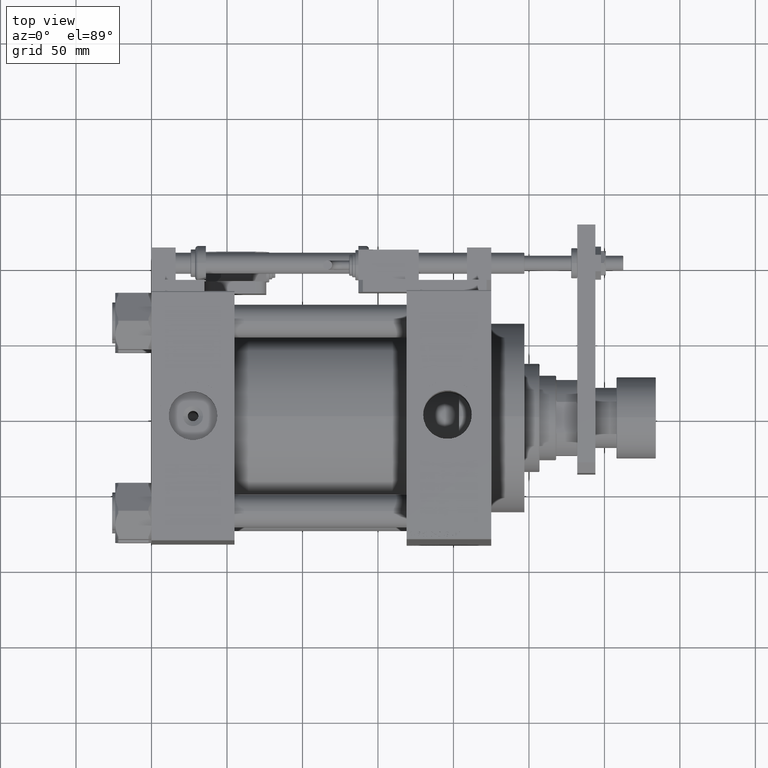
[diagram: clean part render]
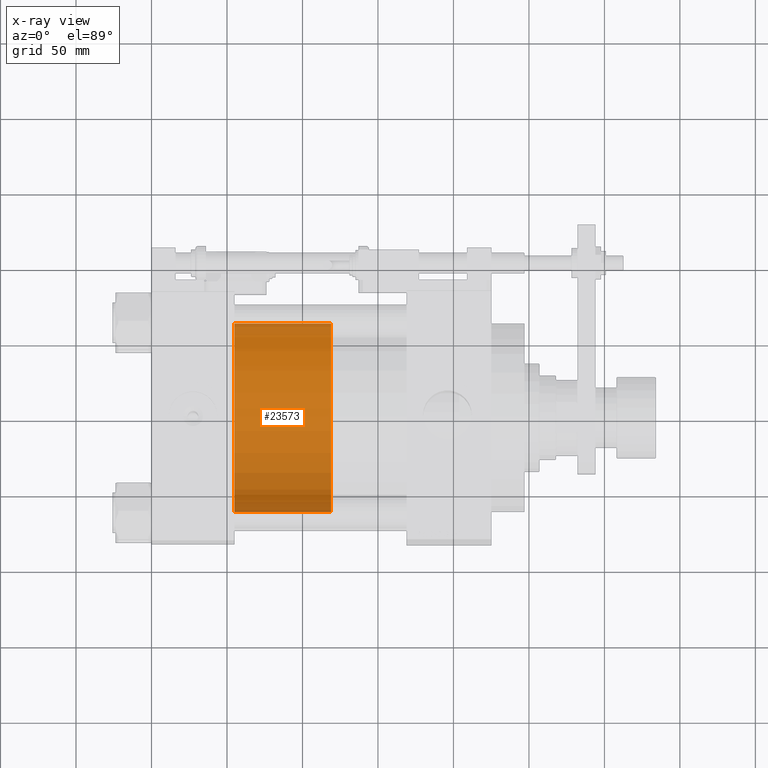
[diagram: x-ray — body ghosted, one internal face saturated and labeled with its STEP entity id]
A machine part, top view, then the same camera in x-ray: the body is ghosted and one INTERNAL B-rep face — a face not visible from any outside direction — is saturated and labeled: STEP entity #23573.
In plain terms, the highlighted cylindrical surface (partial cylindrical patch) has radius 62.5 mm, axis along (-1, 0, 0).
Its self-contained STEP definition (entity closure, byte-faithful):
#1476 = CARTESIAN_POINT ( 'NONE',  ( 62.50000000000000000, 7.654042494670957804E-15, 64.00000000000000000 ) ) ;
#1605 = CARTESIAN_POINT ( 'NONE',  ( 62.50000000000000000, 7.654042494670957804E-15, 64.00000000000000000 ) ) ;
#1663 = DIRECTION ( 'NONE',  ( 1.000000000000000000, 0.000000000000000000, 0.000000000000000000 ) ) ;
#4264 = CIRCLE ( 'NONE', #40817, 62.50000000000000000 ) ;
#4388 = VECTOR ( 'NONE', #34298, 1000.000000000000000 ) ;
#5346 = AXIS2_PLACEMENT_3D ( 'NONE', #26339, #47586, #42940 ) ;
#5995 = DIRECTION ( 'NONE',  ( -0.000000000000000000, -0.000000000000000000, -1.000000000000000000 ) ) ;
#6049 = VERTEX_POINT ( 'NONE', #31628 ) ;
#9050 = ORIENTED_EDGE ( 'NONE', *, *, #9502, .F. ) ;
#9502 = EDGE_CURVE ( 'NONE', #6049, #17830, #22069, .T. ) ;
#14224 = DIRECTION ( 'NONE',  ( 1.000000000000000000, 0.000000000000000000, 0.000000000000000000 ) ) ;
#17830 = VERTEX_POINT ( 'NONE', #24079 ) ;
#18331 = CIRCLE ( 'NONE', #26170, 62.50000000000000000 ) ;
#18454 = FACE_OUTER_BOUND ( 'NONE', #33060, .T. ) ;
#21870 = EDGE_CURVE ( 'NONE', #49367, #6049, #18331, .T. ) ;
#22069 = LINE ( 'NONE', #43575, #28355 ) ;
#22409 = EDGE_CURVE ( 'NONE', #49367, #46853, #38375, .T. ) ;
#23176 = CARTESIAN_POINT ( 'NONE',  ( 0.000000000000000000, 0.000000000000000000, 0.000000000000000000 ) ) ;
#23573 = ADVANCED_FACE ( 'NONE', ( #18454 ), #35063, .T. ) ;
#24079 = CARTESIAN_POINT ( 'NONE',  ( -62.50000000000000000, 0.000000000000000000, 0.000000000000000000 ) ) ;
#25159 = DIRECTION ( 'NONE',  ( 0.000000000000000000, 0.000000000000000000, 1.000000000000000000 ) ) ;
#26170 = AXIS2_PLACEMENT_3D ( 'NONE', #50199, #25159, #14224 ) ;
#26339 = CARTESIAN_POINT ( 'NONE',  ( 0.000000000000000000, 0.000000000000000000, 64.00000000000000000 ) ) ;
#28355 = VECTOR ( 'NONE', #5995, 1000.000000000000000 ) ;
#31628 = CARTESIAN_POINT ( 'NONE',  ( -62.50000000000000000, 0.000000000000000000, 64.00000000000000000 ) ) ;
#33060 = EDGE_LOOP ( 'NONE', ( #51022, #38979, #39517, #9050 ) ) ;
#34298 = DIRECTION ( 'NONE',  ( -0.000000000000000000, -0.000000000000000000, -1.000000000000000000 ) ) ;
#35063 = CYLINDRICAL_SURFACE ( 'NONE', #5346, 62.50000000000000000 ) ;
#38375 = LINE ( 'NONE', #1605, #4388 ) ;
#38979 = ORIENTED_EDGE ( 'NONE', *, *, #22409, .T. ) ;
#39517 = ORIENTED_EDGE ( 'NONE', *, *, #49585, .T. ) ;
#40817 = AXIS2_PLACEMENT_3D ( 'NONE', #23176, #46890, #1663 ) ;
#42940 = DIRECTION ( 'NONE',  ( -1.000000000000000000, 0.000000000000000000, 0.000000000000000000 ) ) ;
#43575 = CARTESIAN_POINT ( 'NONE',  ( -62.50000000000000000, 0.000000000000000000, 64.00000000000000000 ) ) ;
#46853 = VERTEX_POINT ( 'NONE', #50313 ) ;
#46890 = DIRECTION ( 'NONE',  ( 0.000000000000000000, 0.000000000000000000, 1.000000000000000000 ) ) ;
#47586 = DIRECTION ( 'NONE',  ( -0.000000000000000000, -0.000000000000000000, -1.000000000000000000 ) ) ;
#49367 = VERTEX_POINT ( 'NONE', #1476 ) ;
#49585 = EDGE_CURVE ( 'NONE', #46853, #17830, #4264, .T. ) ;
#50199 = CARTESIAN_POINT ( 'NONE',  ( 0.000000000000000000, 0.000000000000000000, 64.00000000000000000 ) ) ;
#50313 = CARTESIAN_POINT ( 'NONE',  ( 62.50000000000000000, 7.654042494670957804E-15, 0.000000000000000000 ) ) ;
#51022 = ORIENTED_EDGE ( 'NONE', *, *, #21870, .F. ) ;